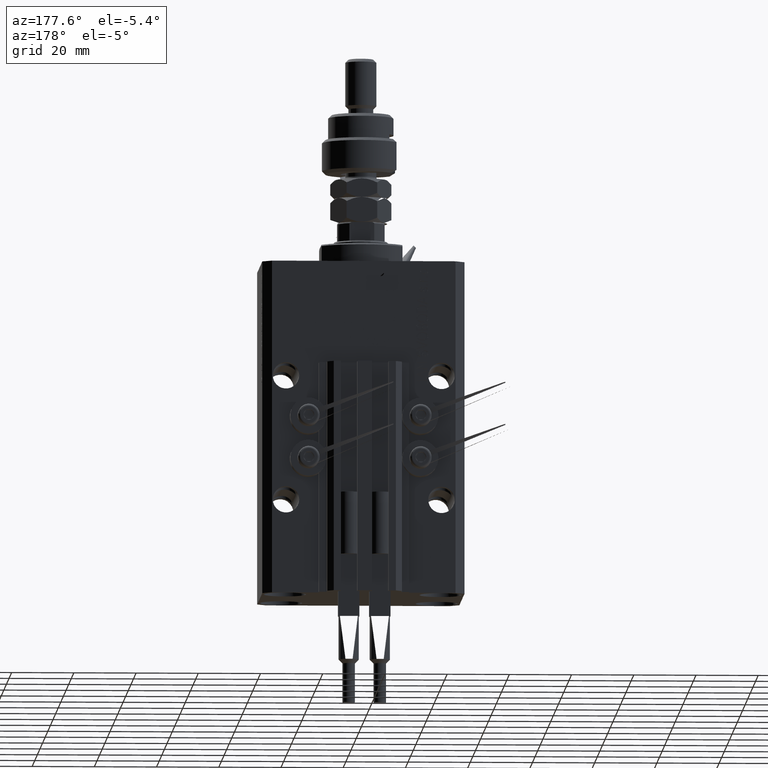
[diagram: clean part render]
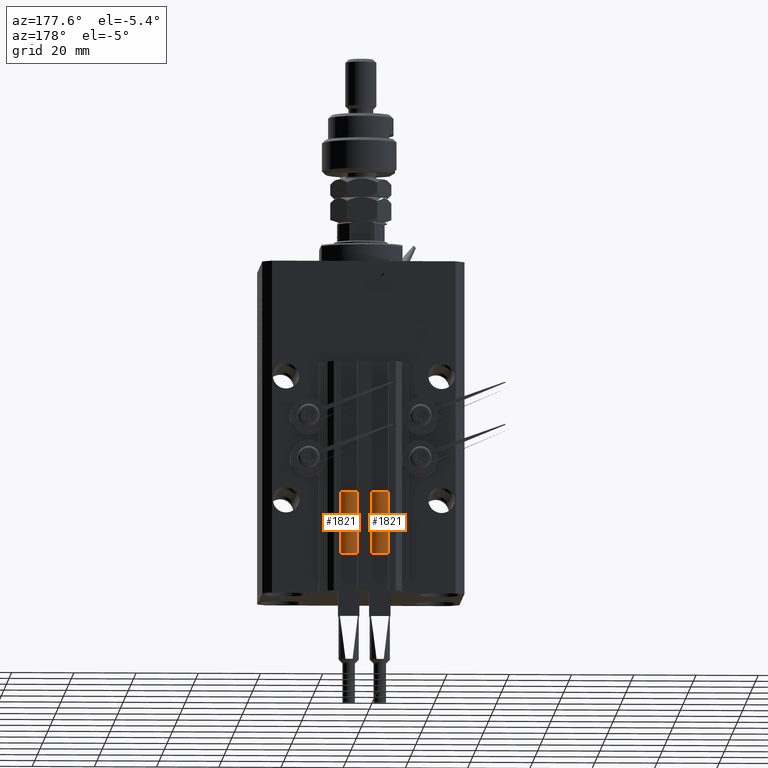
[diagram: same view with one multi-face feature highlighted, each face labeled with its STEP entity id]
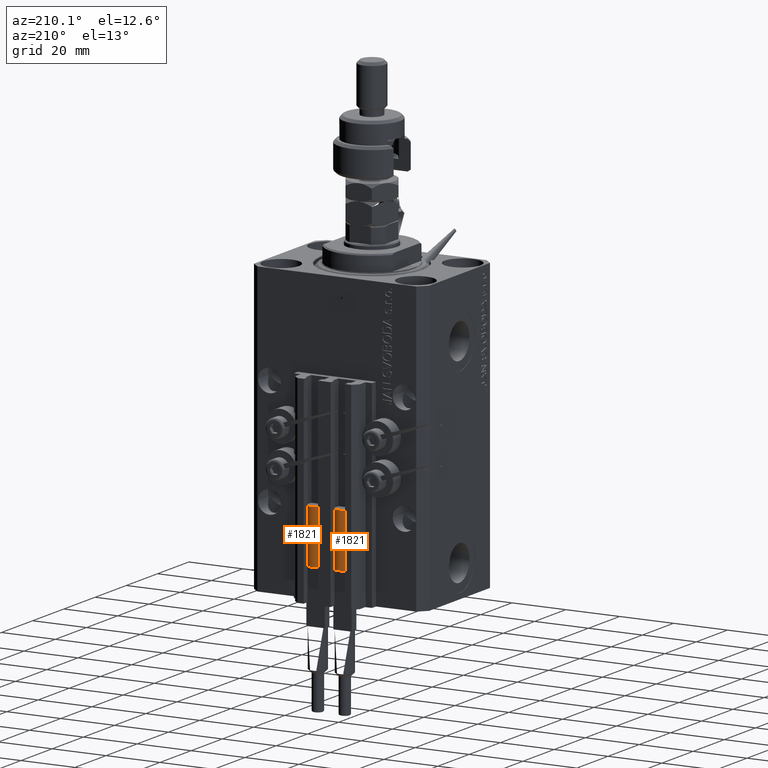
[diagram: same view with one multi-face feature highlighted, each face labeled with its STEP entity id]
A machine part, auxiliary view. The highlighted faces form ONE feature: a constant-radius fillet chain: 2 tangent blend faces with common blend radius 3.4 mm. The faces share edges in the B-rep.
A second angle (auxiliary view) of the same feature is appended — it is thin or edge-on in the first view.
Their STEP definitions:
[1] entity #1821 (Cylinder):
#827 = VECTOR ( 'NONE', #19342, 1000.000000000000000 ) ;
#1175 = VERTEX_POINT ( 'NONE', #33707 ) ;
#1787 = CARTESIAN_POINT ( 'NONE',  ( -3.399999999999999467, -4.915049848600952119E-16, 20.00000000000000000 ) ) ;
#1821 = ADVANCED_FACE ( 'NONE', ( #29355 ), #25990, .T. ) ;
#1955 = ORIENTED_EDGE ( 'NONE', *, *, #49503, .T. ) ;
#2541 = VERTEX_POINT ( 'NONE', #12330 ) ;
#3081 = AXIS2_PLACEMENT_3D ( 'NONE', #29884, #9650, #45724 ) ;
#3331 = ORIENTED_EDGE ( 'NONE', *, *, #16988, .T. ) ;
#3878 = DIRECTION ( 'NONE',  ( 0.000000000000000000, 0.000000000000000000, 1.000000000000000000 ) ) ;
#5217 = EDGE_LOOP ( 'NONE', ( #12004, #3331, #1955, #20064, #49319, #32520 ) ) ;
#5779 = VERTEX_POINT ( 'NONE', #18872 ) ;
#6379 = CARTESIAN_POINT ( 'NONE',  ( 3.400000000000000355, 4.163799117101001052E-16, 20.00000000000000000 ) ) ;
#7028 = CIRCLE ( 'NONE', #19429, 3.400000000000000355 ) ;
#8278 = DIRECTION ( 'NONE',  ( 1.000000000000000000, 0.000000000000000000, 0.000000000000000000 ) ) ;
#9650 = DIRECTION ( 'NONE',  ( -0.000000000000000000, -0.000000000000000000, -1.000000000000000000 ) ) ;
#9728 = CARTESIAN_POINT ( 'NONE',  ( 0.000000000000000000, 0.000000000000000000, 20.00000000000000000 ) ) ;
#11417 = EDGE_CURVE ( 'NONE', #1175, #49268, #39328, .T. ) ;
#11814 = CARTESIAN_POINT ( 'NONE',  ( 18.68181818181468046, -21.99999999999950262, -8.818181818181814791 ) ) ;
#12004 = ORIENTED_EDGE ( 'NONE', *, *, #50581, .F. ) ;
#12218 = CARTESIAN_POINT ( 'NONE',  ( 3.400000000000000355, 4.163799117101001052E-16, 0.000000000000000000 ) ) ;
#12330 = CARTESIAN_POINT ( 'NONE',  ( 3.400000000000000355, 0.000000000000000000, 20.00000000000000000 ) ) ;
#12528 = VECTOR ( 'NONE', #22184, 1000.000000000000000 ) ;
#13006 = DIRECTION ( 'NONE',  ( 1.000000000000000000, 0.000000000000000000, 0.000000000000000000 ) ) ;
#13279 = DIRECTION ( 'NONE',  ( 0.000000000000000000, 0.000000000000000000, 1.000000000000000000 ) ) ;
#16551 = CARTESIAN_POINT ( 'NONE',  ( -3.400000000000000355, 0.000000000000000000, 0.000000000000000000 ) ) ;
#16988 = EDGE_CURVE ( 'NONE', #2541, #25335, #41909, .T. ) ;
#18872 = CARTESIAN_POINT ( 'NONE',  ( -3.051229260478471428, 1.500000000000000000, 20.00000000000000000 ) ) ;
#19342 = DIRECTION ( 'NONE',  ( 2.352167425053553784E-16, -1.000000000000000000, -0.000000000000000000 ) ) ;
#19429 = AXIS2_PLACEMENT_3D ( 'NONE', #32485, #48315, #13006 ) ;
#19466 = AXIS2_PLACEMENT_3D ( 'NONE', #25736, #13279, #37938 ) ;
#20064 = ORIENTED_EDGE ( 'NONE', *, *, #40669, .F. ) ;
#20520 = VERTEX_POINT ( 'NONE', #1787 ) ;
#21160 = CIRCLE ( 'NONE', #43545, 3.400000000000000355 ) ;
#21360 = AXIS2_PLACEMENT_3D ( 'NONE', #9728, #31621, #51350 ) ;
#22184 = DIRECTION ( 'NONE',  ( -0.000000000000000000, -0.000000000000000000, -1.000000000000000000 ) ) ;
#24415 = CIRCLE ( 'NONE', #19466, 3.400000000000000355 ) ;
#25335 = VERTEX_POINT ( 'NONE', #12218 ) ;
#25736 = CARTESIAN_POINT ( 'NONE',  ( 0.000000000000000000, 0.000000000000000000, 20.00000000000000000 ) ) ;
#25792 = VERTEX_POINT ( 'NONE', #41707 ) ;
#25990 = CYLINDRICAL_SURFACE ( 'NONE', #3081, 3.400000000000000355 ) ;
#29355 = FACE_OUTER_BOUND ( 'NONE', #5217, .T. ) ;
#29456 = EDGE_CURVE ( 'NONE', #25792, #5779, #32982, .T. ) ;
#29884 = CARTESIAN_POINT ( 'NONE',  ( 0.000000000000000000, 0.000000000000000000, 20.00000000000000000 ) ) ;
#31621 = DIRECTION ( 'NONE',  ( 0.000000000000000000, 0.000000000000000000, 1.000000000000000000 ) ) ;
#32485 = CARTESIAN_POINT ( 'NONE',  ( 0.000000000000000000, 0.000000000000000000, 0.000000000000000000 ) ) ;
#32520 = ORIENTED_EDGE ( 'NONE', *, *, #29456, .F. ) ;
#32982 = CIRCLE ( 'NONE', #21360, 3.400000000000000355 ) ;
#33707 = CARTESIAN_POINT ( 'NONE',  ( 18.68181818181468046, -21.99999999999950262, -8.818181818181814791 ) ) ;
#37938 = DIRECTION ( 'NONE',  ( 1.000000000000000000, 0.000000000000000000, 0.000000000000000000 ) ) ;
#39328 = LINE ( 'NONE', #11814, #827 ) ;
#39420 = CARTESIAN_POINT ( 'NONE',  ( 0.000000000000000000, 0.000000000000000000, 20.00000000000000000 ) ) ;
#40004 = VERTEX_POINT ( 'NONE', #16551 ) ;
#40669 = ORIENTED_EDGE ( 'NONE', *, *, #11417, .T. ) ;
#41707 = CARTESIAN_POINT ( 'NONE',  ( 3.051229260478471428, 1.500000000000000000, 20.00000000000000000 ) ) ;
#41909 = LINE ( 'NONE', #6379, #12528 ) ;
#42127 = CARTESIAN_POINT ( 'NONE',  ( 18.68181818181468046, -22.49999999999950262, -8.818181818181814791 ) ) ;
#43545 = AXIS2_PLACEMENT_3D ( 'NONE', #39420, #3878, #8278 ) ;
#45724 = DIRECTION ( 'NONE',  ( -1.000000000000000000, 0.000000000000000000, 0.000000000000000000 ) ) ;
#48315 = DIRECTION ( 'NONE',  ( 0.000000000000000000, 0.000000000000000000, 1.000000000000000000 ) ) ;
#49268 = VERTEX_POINT ( 'NONE', #42127 ) ;
#49319 = ORIENTED_EDGE ( 'NONE', *, *, #51220, .F. ) ;
#49503 = EDGE_CURVE ( 'NONE', #25335, #40004, #7028, .T. ) ;
#50581 = EDGE_CURVE ( 'NONE', #2541, #25792, #24415, .T. ) ;
#51220 = EDGE_CURVE ( 'NONE', #5779, #20520, #21160, .T. ) ;
#51350 = DIRECTION ( 'NONE',  ( 1.000000000000000000, 0.000000000000000000, 0.000000000000000000 ) ) ;
[2] entity #1821 (Cylinder):
#827 = VECTOR ( 'NONE', #19342, 1000.000000000000000 ) ;
#1175 = VERTEX_POINT ( 'NONE', #33707 ) ;
#1787 = CARTESIAN_POINT ( 'NONE',  ( -3.399999999999999467, -4.915049848600952119E-16, 20.00000000000000000 ) ) ;
#1821 = ADVANCED_FACE ( 'NONE', ( #29355 ), #25990, .T. ) ;
#1955 = ORIENTED_EDGE ( 'NONE', *, *, #49503, .T. ) ;
#2541 = VERTEX_POINT ( 'NONE', #12330 ) ;
#3081 = AXIS2_PLACEMENT_3D ( 'NONE', #29884, #9650, #45724 ) ;
#3331 = ORIENTED_EDGE ( 'NONE', *, *, #16988, .T. ) ;
#3878 = DIRECTION ( 'NONE',  ( 0.000000000000000000, 0.000000000000000000, 1.000000000000000000 ) ) ;
#5217 = EDGE_LOOP ( 'NONE', ( #12004, #3331, #1955, #20064, #49319, #32520 ) ) ;
#5779 = VERTEX_POINT ( 'NONE', #18872 ) ;
#6379 = CARTESIAN_POINT ( 'NONE',  ( 3.400000000000000355, 4.163799117101001052E-16, 20.00000000000000000 ) ) ;
#7028 = CIRCLE ( 'NONE', #19429, 3.400000000000000355 ) ;
#8278 = DIRECTION ( 'NONE',  ( 1.000000000000000000, 0.000000000000000000, 0.000000000000000000 ) ) ;
#9650 = DIRECTION ( 'NONE',  ( -0.000000000000000000, -0.000000000000000000, -1.000000000000000000 ) ) ;
#9728 = CARTESIAN_POINT ( 'NONE',  ( 0.000000000000000000, 0.000000000000000000, 20.00000000000000000 ) ) ;
#11417 = EDGE_CURVE ( 'NONE', #1175, #49268, #39328, .T. ) ;
#11814 = CARTESIAN_POINT ( 'NONE',  ( 18.68181818181468046, -21.99999999999950262, -8.818181818181814791 ) ) ;
#12004 = ORIENTED_EDGE ( 'NONE', *, *, #50581, .F. ) ;
#12218 = CARTESIAN_POINT ( 'NONE',  ( 3.400000000000000355, 4.163799117101001052E-16, 0.000000000000000000 ) ) ;
#12330 = CARTESIAN_POINT ( 'NONE',  ( 3.400000000000000355, 0.000000000000000000, 20.00000000000000000 ) ) ;
#12528 = VECTOR ( 'NONE', #22184, 1000.000000000000000 ) ;
#13006 = DIRECTION ( 'NONE',  ( 1.000000000000000000, 0.000000000000000000, 0.000000000000000000 ) ) ;
#13279 = DIRECTION ( 'NONE',  ( 0.000000000000000000, 0.000000000000000000, 1.000000000000000000 ) ) ;
#16551 = CARTESIAN_POINT ( 'NONE',  ( -3.400000000000000355, 0.000000000000000000, 0.000000000000000000 ) ) ;
#16988 = EDGE_CURVE ( 'NONE', #2541, #25335, #41909, .T. ) ;
#18872 = CARTESIAN_POINT ( 'NONE',  ( -3.051229260478471428, 1.500000000000000000, 20.00000000000000000 ) ) ;
#19342 = DIRECTION ( 'NONE',  ( 2.352167425053553784E-16, -1.000000000000000000, -0.000000000000000000 ) ) ;
#19429 = AXIS2_PLACEMENT_3D ( 'NONE', #32485, #48315, #13006 ) ;
#19466 = AXIS2_PLACEMENT_3D ( 'NONE', #25736, #13279, #37938 ) ;
#20064 = ORIENTED_EDGE ( 'NONE', *, *, #40669, .F. ) ;
#20520 = VERTEX_POINT ( 'NONE', #1787 ) ;
#21160 = CIRCLE ( 'NONE', #43545, 3.400000000000000355 ) ;
#21360 = AXIS2_PLACEMENT_3D ( 'NONE', #9728, #31621, #51350 ) ;
#22184 = DIRECTION ( 'NONE',  ( -0.000000000000000000, -0.000000000000000000, -1.000000000000000000 ) ) ;
#24415 = CIRCLE ( 'NONE', #19466, 3.400000000000000355 ) ;
#25335 = VERTEX_POINT ( 'NONE', #12218 ) ;
#25736 = CARTESIAN_POINT ( 'NONE',  ( 0.000000000000000000, 0.000000000000000000, 20.00000000000000000 ) ) ;
#25792 = VERTEX_POINT ( 'NONE', #41707 ) ;
#25990 = CYLINDRICAL_SURFACE ( 'NONE', #3081, 3.400000000000000355 ) ;
#29355 = FACE_OUTER_BOUND ( 'NONE', #5217, .T. ) ;
#29456 = EDGE_CURVE ( 'NONE', #25792, #5779, #32982, .T. ) ;
#29884 = CARTESIAN_POINT ( 'NONE',  ( 0.000000000000000000, 0.000000000000000000, 20.00000000000000000 ) ) ;
#31621 = DIRECTION ( 'NONE',  ( 0.000000000000000000, 0.000000000000000000, 1.000000000000000000 ) ) ;
#32485 = CARTESIAN_POINT ( 'NONE',  ( 0.000000000000000000, 0.000000000000000000, 0.000000000000000000 ) ) ;
#32520 = ORIENTED_EDGE ( 'NONE', *, *, #29456, .F. ) ;
#32982 = CIRCLE ( 'NONE', #21360, 3.400000000000000355 ) ;
#33707 = CARTESIAN_POINT ( 'NONE',  ( 18.68181818181468046, -21.99999999999950262, -8.818181818181814791 ) ) ;
#37938 = DIRECTION ( 'NONE',  ( 1.000000000000000000, 0.000000000000000000, 0.000000000000000000 ) ) ;
#39328 = LINE ( 'NONE', #11814, #827 ) ;
#39420 = CARTESIAN_POINT ( 'NONE',  ( 0.000000000000000000, 0.000000000000000000, 20.00000000000000000 ) ) ;
#40004 = VERTEX_POINT ( 'NONE', #16551 ) ;
#40669 = ORIENTED_EDGE ( 'NONE', *, *, #11417, .T. ) ;
#41707 = CARTESIAN_POINT ( 'NONE',  ( 3.051229260478471428, 1.500000000000000000, 20.00000000000000000 ) ) ;
#41909 = LINE ( 'NONE', #6379, #12528 ) ;
#42127 = CARTESIAN_POINT ( 'NONE',  ( 18.68181818181468046, -22.49999999999950262, -8.818181818181814791 ) ) ;
#43545 = AXIS2_PLACEMENT_3D ( 'NONE', #39420, #3878, #8278 ) ;
#45724 = DIRECTION ( 'NONE',  ( -1.000000000000000000, 0.000000000000000000, 0.000000000000000000 ) ) ;
#48315 = DIRECTION ( 'NONE',  ( 0.000000000000000000, 0.000000000000000000, 1.000000000000000000 ) ) ;
#49268 = VERTEX_POINT ( 'NONE', #42127 ) ;
#49319 = ORIENTED_EDGE ( 'NONE', *, *, #51220, .F. ) ;
#49503 = EDGE_CURVE ( 'NONE', #25335, #40004, #7028, .T. ) ;
#50581 = EDGE_CURVE ( 'NONE', #2541, #25792, #24415, .T. ) ;
#51220 = EDGE_CURVE ( 'NONE', #5779, #20520, #21160, .T. ) ;
#51350 = DIRECTION ( 'NONE',  ( 1.000000000000000000, 0.000000000000000000, 0.000000000000000000 ) ) ;